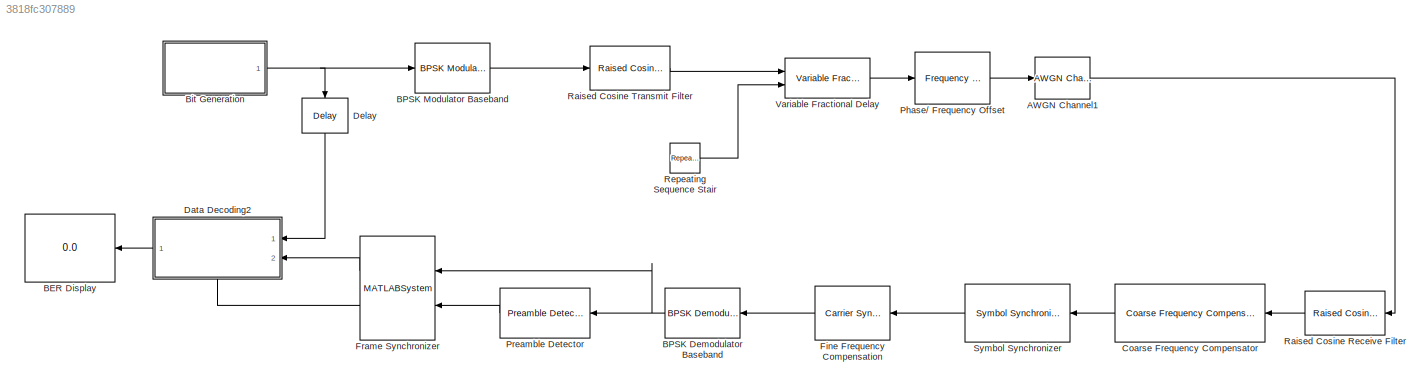
MODEL slx_3818fc307889
KIND model
CONFIG AbsTol = auto
CONFIG EnableMultiTasking = on
CONFIG FixedStep = auto
CONFIG MaxStep = auto
CONFIG MinStep = auto
CONFIG RelTol = 1e-3
CONFIG SampleTimeConstraint = Unconstrained
CONFIG SolverName = ode45
CONFIG StartTime = 0.0
CONFIG StopTime = inf
BLOCK [Reference] AWGN Channel1  REF=commchan3/AWGN
Channel
  Ports = [1, 1]
  SourceBlock = commchan3/AWGN\nChannel
  SourceProductBaseCode = CM
  SourceType = AWGN Channel
  UserDataPersistent = on
BLOCK [Display] BER Display
  Decimation = 1
  Ports = [1]
BLOCK [Reference] BPSK Demodulator Baseband  REF=commdigbbndpm3/BPSK
Demodulator
Baseband
  Ports = [1, 1]
  SourceBlock = commdigbbndpm3/BPSK\nDemodulator\nBaseband
  SourceProductBaseCode = CM
  SourceType = BPSK Demodulator Baseband
BLOCK [Reference] BPSK Modulator Baseband  REF=commdigbbndpm3/BPSK
Modulator
Baseband
  Ports = [1, 1]
  SourceBlock = commdigbbndpm3/BPSK\nModulator\nBaseband
  SourceProductBaseCode = CM
  SourceType = BPSK Modulator Baseband
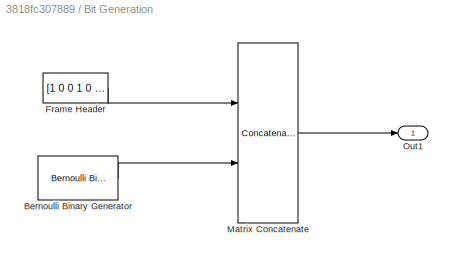
BLOCK [SubSystem] Bit Generation
  Ports = [0, 1]
  RequestExecContextInheritance = off
BLOCK [Reference] Bit Generation/Bernoulli Binary Generator  REF=commrandsrc3/Bernoulli Binary
Generator
  Ports = [0, 1]
  SourceBlock = commrandsrc3/Bernoulli Binary\nGenerator
  SourceProductBaseCode = CM
  SourceType = Bernoulli Binary Generator
BLOCK [Constant] Bit Generation/Frame Header
  OutDataTypeStr = double
  Value = [1 0 0 1 0 1 1 0 1 1 1 0 1 0 1 1 0 1 1 0 1 0 0 1 0 1 1 0 1 1 1 0 1 0 1 1 0 1 1 0]'
  VectorParams1D = off
BLOCK [Concatenate] Bit Generation/Matrix Concatenate
  Mode = Multidimensional array
  Ports = [2, 1]
BLOCK [Outport] Bit Generation/Out1
  VectorParamsAs1DForOutWhenUnconnected = off
BLOCK [Reference] Coarse Frequency Compensator  REF=commrfcorlib/Coarse Frequency
Compensator
  Ports = [1, 1]
  SourceBlock = commrfcorlib/Coarse Frequency\nCompensator
  SourceProductBaseCode = CM
  SourceType = Coarse Frequency Compensator
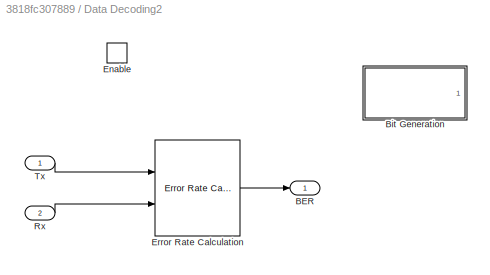
BLOCK [SubSystem] Data Decoding2
  NameLocation = top
  Ports = [2, 1, 1]
  RequestExecContextInheritance = off
BLOCK [Outport] Data Decoding2/BER
  VectorParamsAs1DForOutWhenUnconnected = off
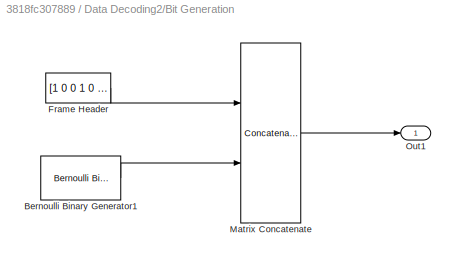
BLOCK [SubSystem] Data Decoding2/Bit Generation
  Commented = on
  Ports = [0, 1]
  RequestExecContextInheritance = off
BLOCK [Reference] Data Decoding2/Bit Generation/Bernoulli Binary Generator1  REF=commrandsrc3/Bernoulli Binary
Generator
  Ports = [0, 1]
  SourceBlock = commrandsrc3/Bernoulli Binary\nGenerator
  SourceProductBaseCode = CM
  SourceType = Bernoulli Binary Generator
BLOCK [Constant] Data Decoding2/Bit Generation/Frame Header
  OutDataTypeStr = double
  Value = [1 0 0 1 0 1 1 0 1 1 1 0 1 0 1 1 0 1 1 0 1 0 0 1 0 1 1 0 1 1 1 0 1 0 1 1 0 1 1 0]'
  VectorParams1D = off
BLOCK [Concatenate] Data Decoding2/Bit Generation/Matrix Concatenate
  Mode = Multidimensional array
  Ports = [2, 1]
BLOCK [Outport] Data Decoding2/Bit Generation/Out1
  VectorParamsAs1DForOutWhenUnconnected = off
BLOCK [EnablePort] Data Decoding2/Enable
  Ports = []
BLOCK [Reference] Data Decoding2/Error Rate Calculation  REF=commsink2/Error Rate
Calculation
  Ports = [2, 1]
  SourceBlock = commsink2/Error Rate\nCalculation
  SourceProductBaseCode = CM
  SourceType = Error Rate Calculation
BLOCK [Inport] Data Decoding2/Rx
  Port = 2
BLOCK [Inport] Data Decoding2/Tx
BLOCK [Delay] Delay
  DelayLength = 200
  InputPortMap = u0
  InputProcessing = Columns as channels (frame based)
  NameLocation = left
  Ports = [1, 1]
  UseCircularBuffer = on
BLOCK [Reference] Fine Frequency Compensation  REF=commsync2/Carrier Synchronizer
  Ports = [1, 1]
  SourceBlock = commsync2/Carrier Synchronizer
  SourceProductBaseCode = CM
  SourceType = Carrier Synchronizer
BLOCK [MATLABSystem] Frame Synchronizer
  Input = Bit
  MaskDisplay = disp(['Frame' char(10) 'Synchronizer']);\nport_label('input',1,'u');\nport_label('input',2,'idx');\nport_label('output',1,'Frame');\nport_label('output',2,'Valid');
  MaskType = comm.internal.examples.FrameSynchronizer
  OutputFrameLength = 200
  Ports = [2, 2]
  PreambleLength = 40
  SimulateUsing = Interpreted execution
  System = comm.internal.examples.FrameSynchronizer
BLOCK [Reference] Phase// Frequency Offset  REF=commrflib2/Phase//
Frequency
Offset
  Ports = [1, 1]
  SourceBlock = commrflib2/Phase//\nFrequency\nOffset
  SourceProductBaseCode = CM
  SourceType = Phase/Frequency Offset
BLOCK [Reference] Preamble Detector  REF=commsync2/Preamble Detector
  Ports = [1, 1]
  SourceBlock = commsync2/Preamble Detector
  SourceProductBaseCode = CM
  SourceType = Preamble Detector
BLOCK [Reference] Raised Cosine Receive Filter  REF=commfilt2/Raised Cosine
Receive Filter
  Ports = [1, 1]
  SourceBlock = commfilt2/Raised Cosine\nReceive Filter
  SourceProductBaseCode = CM
  SourceType = Raised Cosine Receive Filter
  UserDataPersistent = on
BLOCK [Reference] Raised Cosine Transmit Filter  REF=commfilt2/Raised Cosine
Transmit Filter
  Ports = [1, 1]
  SourceBlock = commfilt2/Raised Cosine\nTransmit Filter
  SourceProductBaseCode = CM
  SourceType = Raised Cosine Transmit Filter
  UserDataPersistent = on
BLOCK [Reference] Repeating Sequence Stair  REF=simulink/Sources/Repeating
Sequence
Stair
  Ports = [0, 1]
  SourceBlock = simulink/Sources/Repeating\nSequence\nStair
  SourceProductBaseCode = SL
  SourceType = Repeating Sequence Stair
BLOCK [Reference] Symbol Synchronizer  REF=commsync2/Symbol Synchronizer
  Ports = [1, 1]
  SourceBlock = commsync2/Symbol Synchronizer
  SourceProductBaseCode = CM
  SourceType = Symbol Synchronizer
BLOCK [Reference] Variable Fractional Delay  REF=dspsigops/Variable
Fractional Delay
  Ports = [2, 1]
  SourceBlock = dspsigops/Variable\nFractional Delay
  SourceProductBaseCode = DS
  SourceType = Variable Fractional Delay
  UserDataPersistent = on
LINE AWGN Channel1:1 -> Raised Cosine Receive Filter:1
NET BPSK Demodulator Baseband:1 -> Frame Synchronizer:1, Preamble Detector:1
LINE BPSK Modulator Baseband:1 -> Raised Cosine Transmit Filter:1
LINE Bit Generation/Bernoulli Binary Generator:1 -> Bit Generation/Matrix Concatenate:2
LINE Bit Generation/Frame Header:1 -> Bit Generation/Matrix Concatenate:1
LINE Bit Generation/Matrix Concatenate:1 -> Bit Generation/Out1:1
NET Bit Generation:1 -> BPSK Modulator Baseband:1, Delay:1
LINE Coarse Frequency Compensator:1 -> Symbol Synchronizer:1
LINE Data Decoding2/Bit Generation/Bernoulli Binary Generator1:1 -> Data Decoding2/Bit Generation/Matrix Concatenate:2
LINE Data Decoding2/Bit Generation/Frame Header:1 -> Data Decoding2/Bit Generation/Matrix Concatenate:1
LINE Data Decoding2/Bit Generation/Matrix Concatenate:1 -> Data Decoding2/Bit Generation/Out1:1
LINE Data Decoding2/Error Rate Calculation:1 -> Data Decoding2/BER:1
LINE Data Decoding2/Rx:1 -> Data Decoding2/Error Rate Calculation:2
LINE Data Decoding2/Tx:1 -> Data Decoding2/Error Rate Calculation:1
LINE Data Decoding2:1 -> BER Display:1
LINE Delay:1 -> Data Decoding2:1
LINE Fine Frequency Compensation:1 -> BPSK Demodulator Baseband:1
LINE Frame Synchronizer:1 -> Data Decoding2:2
LINE Frame Synchronizer:2 -> Data Decoding2:enable
LINE Phase// Frequency Offset:1 -> AWGN Channel1:1
LINE Preamble Detector:1 -> Frame Synchronizer:2
LINE Raised Cosine Receive Filter:1 -> Coarse Frequency Compensator:1
LINE Raised Cosine Transmit Filter:1 -> Variable Fractional Delay:1
LINE Repeating Sequence Stair:1 -> Variable Fractional Delay:2
LINE Symbol Synchronizer:1 -> Fine Frequency Compensation:1
LINE Variable Fractional Delay:1 -> Phase// Frequency Offset:1
note: NET lines group one-source signal fan-out (src -> all destinations, sorted); 1:1 wires keep LINE
